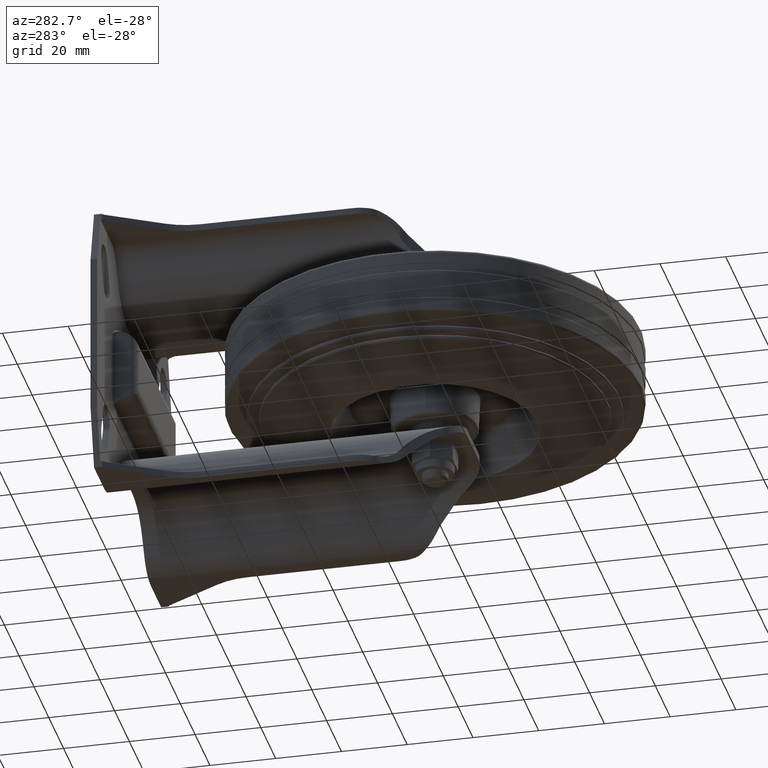
[diagram: clean part render]
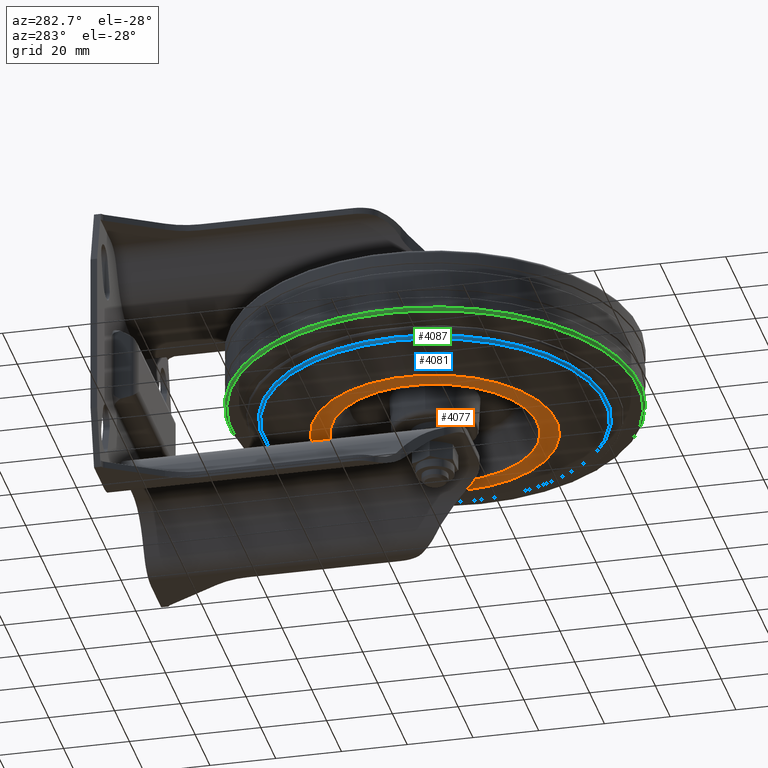
[diagram: same view with three faces highlighted in distinct colors, each labeled with its STEP entity id]
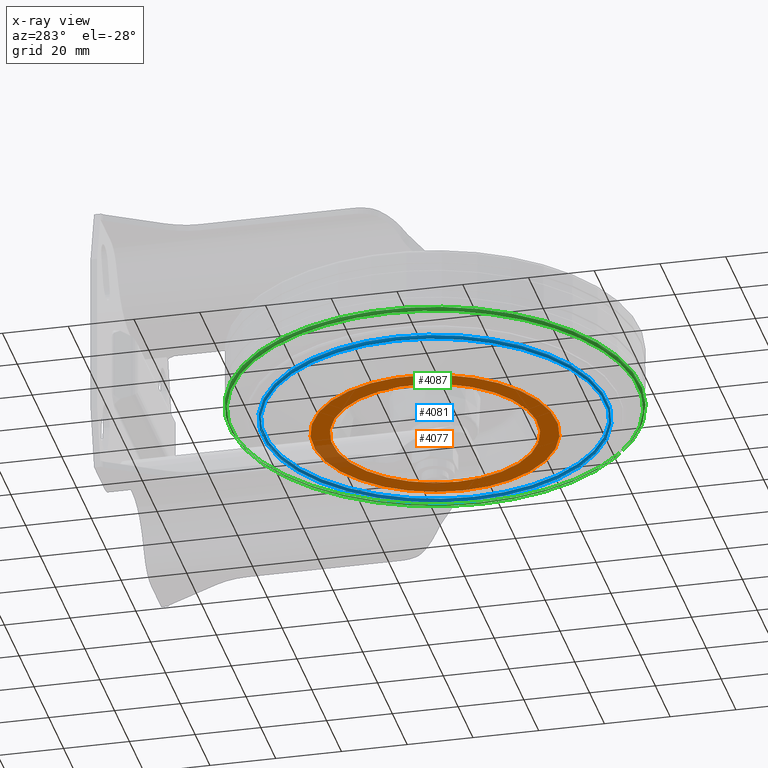
[diagram: x-ray of the same camera — body ghosted, the three highlighted faces saturated]
A machine part, auxiliary view with three faces highlighted in distinct colors.
The next image is the same camera in x-ray (body ghosted, the three faces saturated) — at least one of them is partly hidden behind the body in this view.
Their STEP definitions:

[orange] entity #4077 — the highlighted planar face has unit normal (-0, 0, -1).
#196=FACE_BOUND('',#1401,.T.);
#297=PLANE('',#4634);
#1131=FACE_OUTER_BOUND('',#1400,.T.);
#1400=EDGE_LOOP('',(#3724));
#1401=EDGE_LOOP('',(#3725));
#1601=CIRCLE('',#4633,31.25);
#1602=CIRCLE('',#4635,36.9979721727557);
#2031=VERTEX_POINT('',#7381);
#2032=VERTEX_POINT('',#7385);
#2599=EDGE_CURVE('',#2031,#2031,#1601,.T.);
#2600=EDGE_CURVE('',#2032,#2032,#1602,.T.);
#3724=ORIENTED_EDGE('',*,*,#2600,.T.);
#3725=ORIENTED_EDGE('',*,*,#2599,.F.);
#4077=ADVANCED_FACE('',(#1131,#196),#297,.T.);
#4633=AXIS2_PLACEMENT_3D('',#7383,#5802,#5803);
#4634=AXIS2_PLACEMENT_3D('',#7384,#5804,#5805);
#4635=AXIS2_PLACEMENT_3D('',#7386,#5806,#5807);
#5802=DIRECTION('center_axis',(-3.47869486588621E-17,0.,-1.));
#5803=DIRECTION('ref_axis',(-1.,0.,3.47869486588621E-17));
#5804=DIRECTION('center_axis',(-3.47869486588621E-17,0.,-1.));
#5805=DIRECTION('ref_axis',(-1.,0.,3.47869486588621E-17));
#5806=DIRECTION('center_axis',(-3.47869486588621E-17,0.,-1.));
#5807=DIRECTION('ref_axis',(-1.,0.,3.47869486588621E-17));
#7381=CARTESIAN_POINT('',(31.25,-3.82702124733548E-15,-18.5));
#7383=CARTESIAN_POINT('Origin',(-6.43558550188949E-16,0.,-18.5));
#7384=CARTESIAN_POINT('Origin',(-31.25,0.,-18.5));
#7385=CARTESIAN_POINT('',(36.9979721727557,-4.53094481963081E-15,-18.5));
#7386=CARTESIAN_POINT('Origin',(-6.43558550188949E-16,0.,-18.5));

[blue] entity #4081 — the highlighted toroidal blend (fillet) surface has major radius 51.7909 mm and minor (blend) radius 0.6167 mm.
#39=TOROIDAL_SURFACE('',#4644,51.7909300412334,0.616666666666666);
#1135=FACE_OUTER_BOUND('',#1406,.T.);
#1406=EDGE_LOOP('',(#3738,#3739,#3740,#3741));
#1607=CIRCLE('',#4643,51.7909300412334);
#1608=CIRCLE('',#4645,0.616666666666666);
#1609=CIRCLE('',#4646,51.7909300412334);
#2036=VERTEX_POINT('',#7398);
#2037=VERTEX_POINT('',#7401);
#2606=EDGE_CURVE('',#2036,#2036,#1607,.T.);
#2607=EDGE_CURVE('',#2036,#2037,#1608,.T.);
#2608=EDGE_CURVE('',#2037,#2037,#1609,.T.);
#3738=ORIENTED_EDGE('',*,*,#2606,.F.);
#3739=ORIENTED_EDGE('',*,*,#2607,.T.);
#3740=ORIENTED_EDGE('',*,*,#2608,.T.);
#3741=ORIENTED_EDGE('',*,*,#2607,.F.);
#4081=ADVANCED_FACE('',(#1135),#39,.T.);
#4643=AXIS2_PLACEMENT_3D('',#7399,#5823,#5824);
#4644=AXIS2_PLACEMENT_3D('',#7400,#5825,#5826);
#4645=AXIS2_PLACEMENT_3D('',#7402,#5827,#5828);
#4646=AXIS2_PLACEMENT_3D('',#7403,#5829,#5830);
#5823=DIRECTION('center_axis',(-3.47869486588621E-17,0.,-1.));
#5824=DIRECTION('ref_axis',(-1.,0.,3.47869486588621E-17));
#5825=DIRECTION('center_axis',(-3.47869486588621E-17,0.,-1.));
#5826=DIRECTION('ref_axis',(-1.,0.,3.38950257402755E-17));
#5827=DIRECTION('center_axis',(-1.22464679914735E-16,-1.,4.26017253271788E-33));
#5828=DIRECTION('ref_axis',(1.,-1.22464679914735E-16,-4.23687821753444E-17));
#5829=DIRECTION('center_axis',(-3.47869486588621E-17,0.,-1.));
#5830=DIRECTION('ref_axis',(-1.,0.,3.47869486588621E-17));
#7398=CARTESIAN_POINT('',(51.7909300412334,-6.3425596699861E-15,-14.1959048338792));
#7399=CARTESIAN_POINT('Origin',(-4.93832212622248E-16,0.,-14.1959048338792));
#7400=CARTESIAN_POINT('Origin',(0.,0.,-13.5792381672125));
#7401=CARTESIAN_POINT('',(51.7909300412334,-6.3425596699861E-15,-12.9625715005459));
#7402=CARTESIAN_POINT('Origin',(51.7909300412334,-6.3425596699861E-15,-13.5792381672125));
#7403=CARTESIAN_POINT('Origin',(-4.50928309276318E-16,0.,-12.9625715005459));

[green] entity #4087 — the highlighted toroidal blend (fillet) surface has major radius 61.5 mm and minor (blend) radius 1 mm.
#42=TOROIDAL_SURFACE('',#4661,61.5,1.00000000000001);
#1141=FACE_OUTER_BOUND('',#1414,.T.);
#1414=EDGE_LOOP('',(#3761,#3762,#3763,#3764,#3765));
#1617=CIRCLE('',#4659,61.8255681544572);
#1618=CIRCLE('',#4660,61.8255681544572);
#1619=CIRCLE('',#4662,1.00000000000001);
#1620=CIRCLE('',#4663,62.5);
#2043=VERTEX_POINT('',#7421);
#2044=VERTEX_POINT('',#7422);
#2045=VERTEX_POINT('',#7427);
#2616=EDGE_CURVE('',#2043,#2044,#1617,.T.);
#2617=EDGE_CURVE('',#2044,#2043,#1618,.T.);
#2619=EDGE_CURVE('',#2044,#2045,#1619,.T.);
#2620=EDGE_CURVE('',#2045,#2045,#1620,.T.);
#3761=ORIENTED_EDGE('',*,*,#2616,.F.);
#3762=ORIENTED_EDGE('',*,*,#2617,.F.);
#3763=ORIENTED_EDGE('',*,*,#2619,.T.);
#3764=ORIENTED_EDGE('',*,*,#2620,.T.);
#3765=ORIENTED_EDGE('',*,*,#2619,.F.);
#4087=ADVANCED_FACE('',(#1141),#42,.T.);
#4659=AXIS2_PLACEMENT_3D('',#7423,#5855,#5856);
#4660=AXIS2_PLACEMENT_3D('',#7424,#5857,#5858);
#4661=AXIS2_PLACEMENT_3D('',#7426,#5860,#5861);
#4662=AXIS2_PLACEMENT_3D('',#7428,#5862,#5863);
#4663=AXIS2_PLACEMENT_3D('',#7429,#5864,#5865);
#5855=DIRECTION('center_axis',(-3.47869486588621E-17,0.,-1.));
#5856=DIRECTION('ref_axis',(-1.,0.,3.47869486588621E-17));
#5857=DIRECTION('center_axis',(-3.47869486588621E-17,0.,-1.));
#5858=DIRECTION('ref_axis',(-1.,0.,3.47869486588621E-17));
#5860=DIRECTION('center_axis',(-3.47869486588621E-17,0.,-1.));
#5861=DIRECTION('ref_axis',(-1.,0.,2.8421709430404E-17));
#5862=DIRECTION('center_axis',(-1.22464679914735E-16,-1.,4.26017253271788E-33));
#5863=DIRECTION('ref_axis',(1.,-1.22464679914735E-16,-3.5527136788005E-17));
#5864=DIRECTION('center_axis',(-3.47869486588621E-17,0.,-1.));
#5865=DIRECTION('ref_axis',(-1.,0.,3.47869486588621E-17));
#7421=CARTESIAN_POINT('',(-61.8255681544572,0.,-10.1240351754607));
#7422=CARTESIAN_POINT('',(61.8255681544572,-7.57144841458226E-15,-10.1240351754607));
#7423=CARTESIAN_POINT('Origin',(-3.52184291869265E-16,0.,-10.1240351754607));
#7424=CARTESIAN_POINT('Origin',(-3.52184291869265E-16,0.,-10.1240351754607));
#7426=CARTESIAN_POINT('Origin',(0.,0.,-9.17851659986136));
#7427=CARTESIAN_POINT('',(62.5,-7.65404249467096E-15,-9.17851659986136));
#7428=CARTESIAN_POINT('Origin',(61.5,-7.53157781475622E-15,-9.17851659986136));
#7429=CARTESIAN_POINT('Origin',(-3.19292585723891E-16,0.,-9.17851659986136));